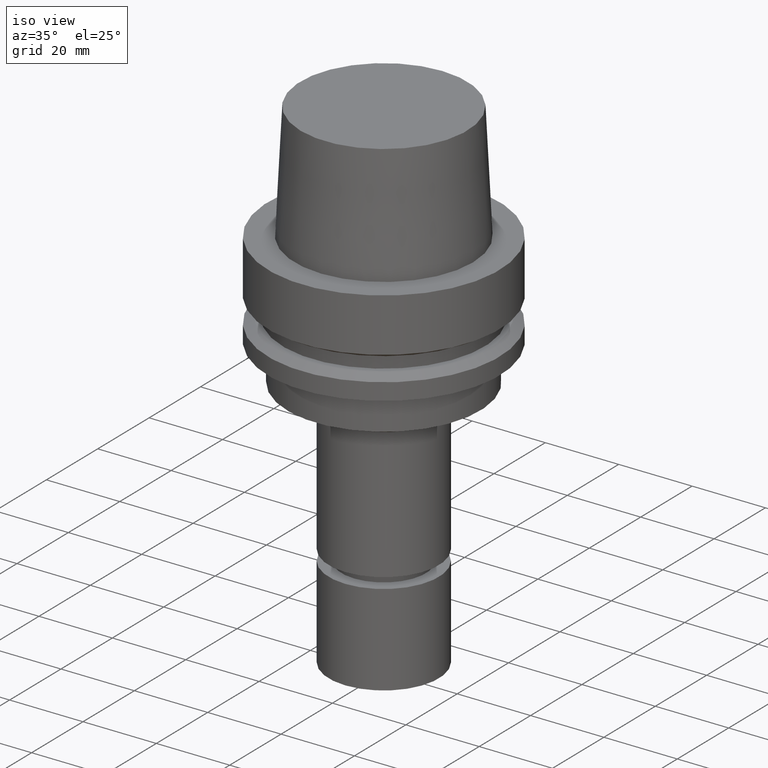
[diagram: clean part render]
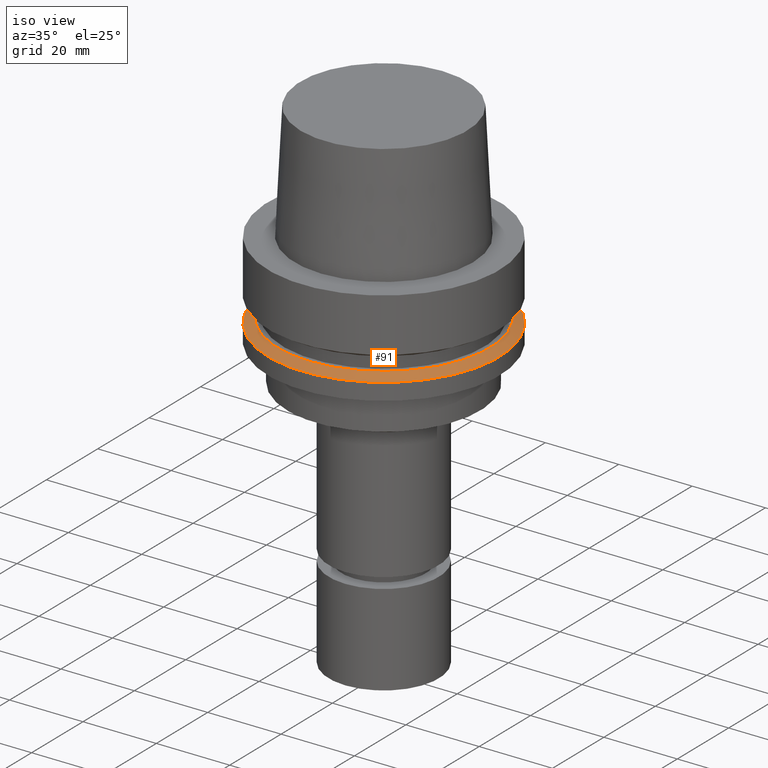
[diagram: same view with one face highlighted and labeled with its STEP entity id]
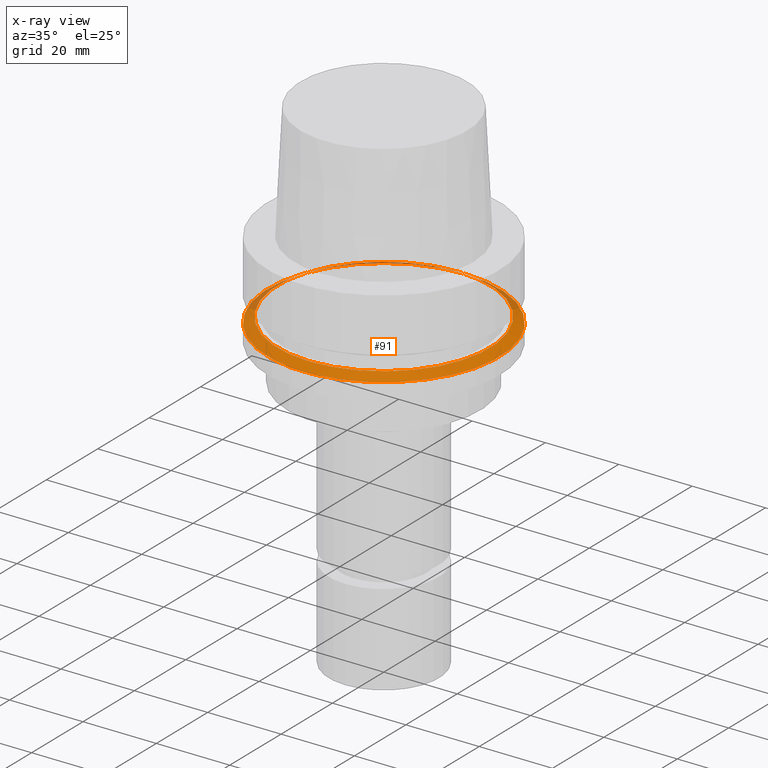
[diagram: x-ray of the same camera — body ghosted, the highlighted face saturated]
A machine part, iso view. The second image highlights one B-rep face of the part: STEP entity #91.
The next image is the same camera in x-ray: the body ghosted, the highlighted face saturated — about 11% of this face is hidden behind the body in this view.
In plain terms, the highlighted conical surface has half-angle 60 deg.
Its self-contained STEP definition (entity closure, byte-faithful):
#91=ADVANCED_FACE('Unnamed[1]',(#233,#234),#235,.T.);
#98=EDGE_CURVE('Unnamed[1]',#245,#245,#246,.T.);
#177=EDGE_CURVE('Unnamed[1]',#364,#364,#365,.T.);
#233=FACE_BOUND('',#430,.T.);
#234=FACE_BOUND('',#431,.T.);
#235=CONICAL_SURFACE('',#432,30.1987976320959,1.04719755119657);
#245=VERTEX_POINT('',#445);
#246=CIRCLE('',#446,28.8975952641919);
#364=VERTEX_POINT('',#593);
#365=CIRCLE('',#594,31.5);
#430=EDGE_LOOP('',(#649));
#431=EDGE_LOOP('',(#650));
#432=AXIS2_PLACEMENT_3D('',#651,#652,#653);
#445=CARTESIAN_POINT('',(1.21699275665268E-015,28.8975952641919,-19.875));
#446=AXIS2_PLACEMENT_3D('',#663,#664,#665);
#593=CARTESIAN_POINT('',(1.30899429078397E-015,31.5,-21.3774990747592));
#594=AXIS2_PLACEMENT_3D('',#793,#794,#795);
#649=ORIENTED_EDGE('',*,*,#98,.F.);
#650=ORIENTED_EDGE('',*,*,#177,.T.);
#651=CARTESIAN_POINT('',(1.26299352371833E-015,2.52598704743665E-015,-20.6262495373796));
#652=DIRECTION('',(6.12323399573677E-017,1.22464679914735E-016,-1.0));
#653=DIRECTION('',(-1.23259516440783E-032,1.0,1.22464679914735E-016));
#663=CARTESIAN_POINT('',(1.21699275665268E-015,2.43398551330536E-015,-19.875));
#664=DIRECTION('',(-6.12323399573677E-017,-1.22464679914735E-016,1.0));
#665=DIRECTION('',(-1.23259516440783E-032,1.0,1.22464679914735E-016));
#793=CARTESIAN_POINT('',(1.30899429078397E-015,2.61798858156794E-015,-21.3774990747592));
#794=DIRECTION('',(-6.12323399573677E-017,-1.22464679914735E-016,1.0));
#795=DIRECTION('',(-1.23259516440783E-032,1.0,1.22464679914735E-016));